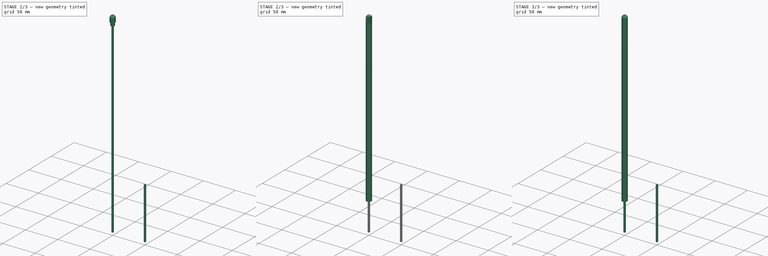
[diagram: build sequence overview — one tinted view per stage of 3, left to right]
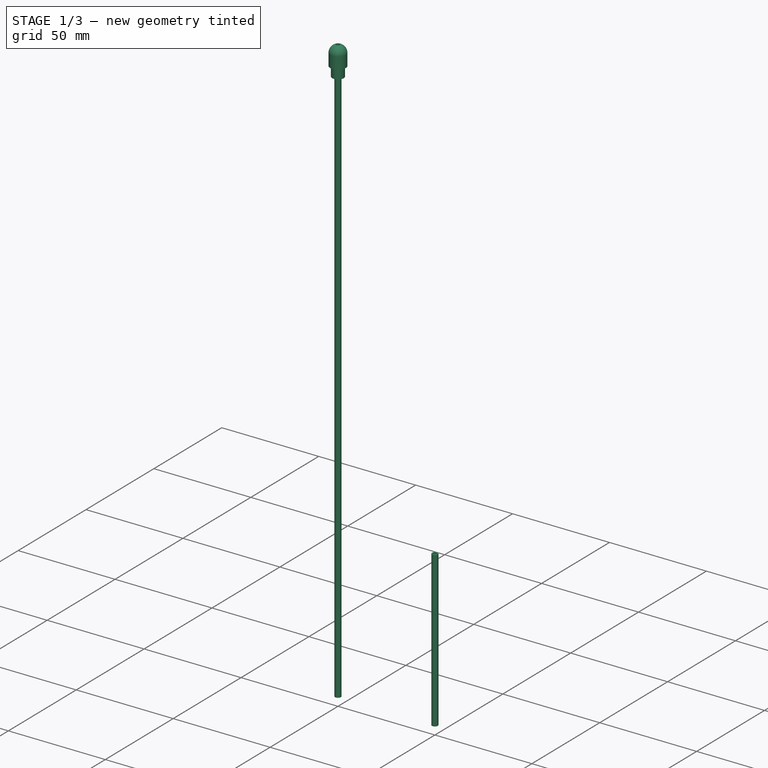
[diagram: stage 1 of 3 — iso view after this stage's code; geometry added in this stage tinted green]
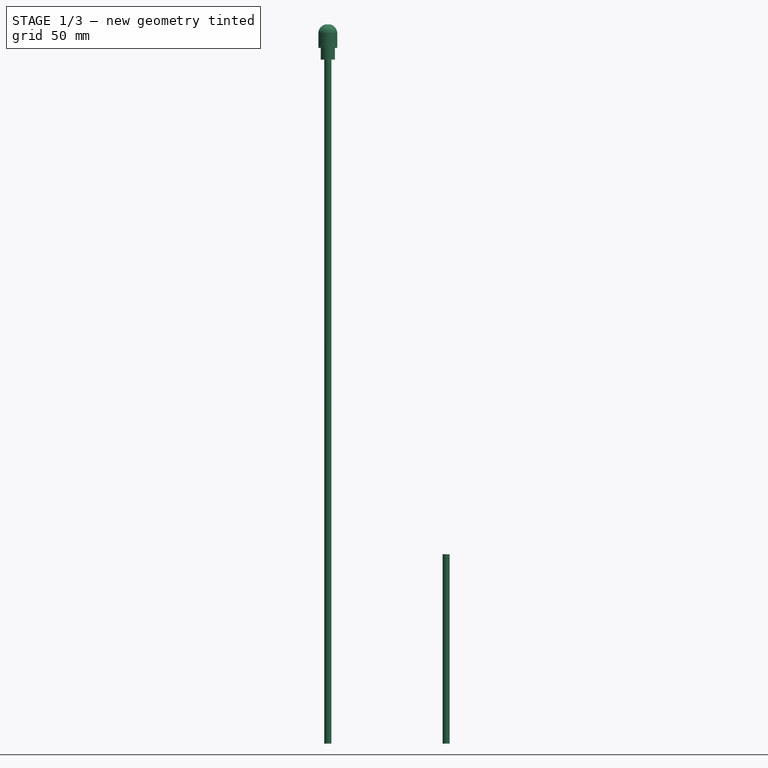
[diagram: stage 1 of 3 — front view after this stage's code; geometry added in this stage tinted green]
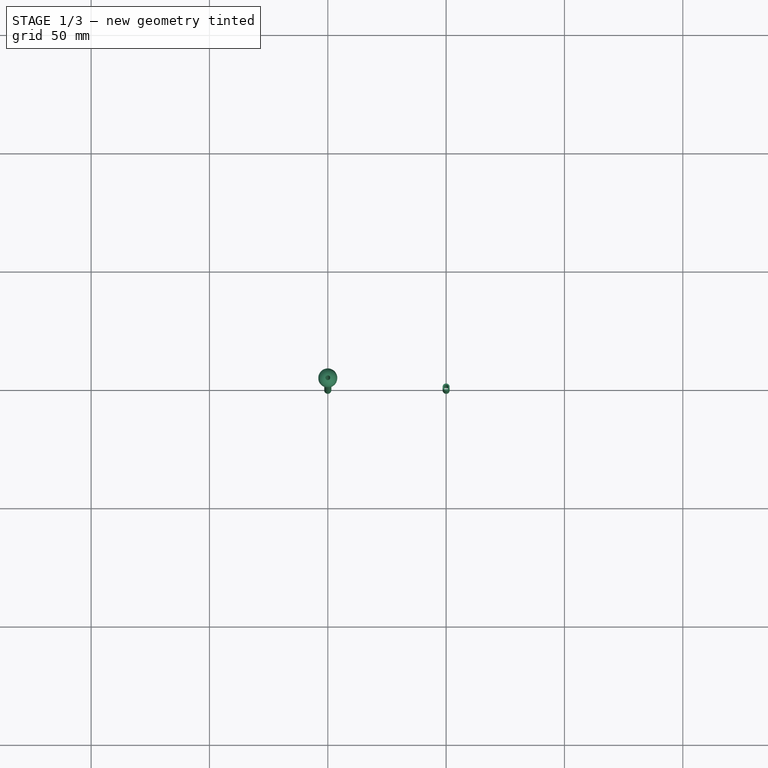
[diagram: stage 1 of 3 — top view after this stage's code; geometry added in this stage tinted green]
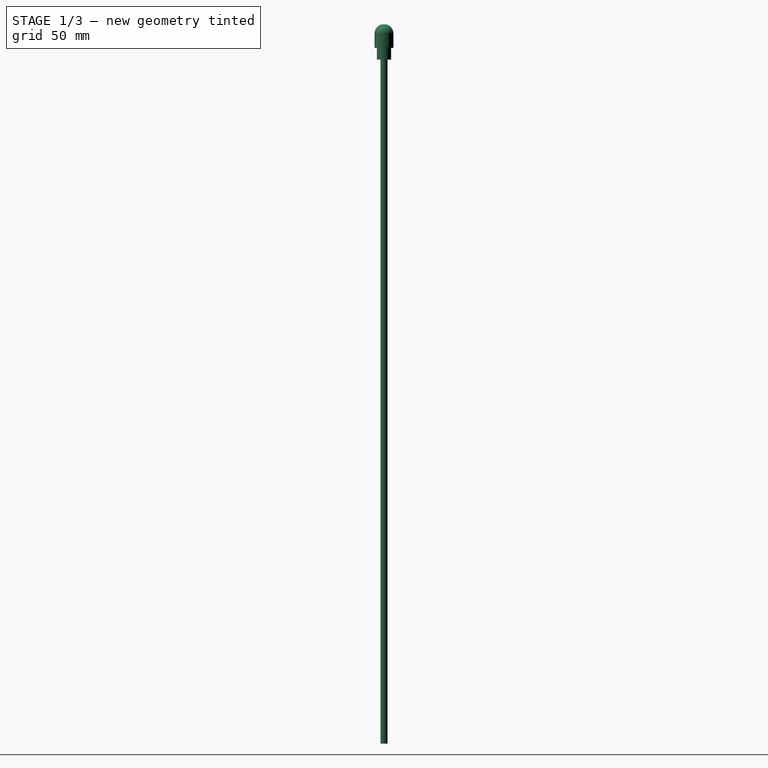
[diagram: stage 1 of 3 — right view after this stage's code; geometry added in this stage tinted green]
FCSTD DOCUMENT  (FreeCAD 0.16R6712 (Git))
Label: Assembly8mmBAD
License: All rights reserved
LicenseURL: http://en.wikipedia.org/wiki/All_rights_reserved
objects: Sketcher::SketchObject×7, PartDesign::Pad×4, PartDesign::Pocket×2, PartDesign::PolarPattern×1, PartDesign::Revolution×1
note: 22 computed .brp shape members not serialized (recipe doc carries the construction recipe); baked Part::Feature solids carry a one-line shape summary decoded from their .brp

FEATURE [Sketcher::SketchObject] Sketch004
  sketch-geometry (2):
    g0: Circle CenterX=0 CenterY=0 CenterZ=0 NormalX=0 NormalY=0 NormalZ=1 Radius=1.5
    g1: Circle CenterX=0 CenterY=0 CenterZ=0 NormalX=0 NormalY=0 NormalZ=1 Radius=1
  constraints (3):
    c: Coincident(g1,g-1)
    c: Radius(g1) = 1
    c: Radius(g0) = 1.5
FEATURE [PartDesign::Pad] Pad002
  Length = 293
  Length2 = 100
  Sketch = -> Sketch004
  Type = 0
FEATURE [Sketcher::SketchObject] Sketch005
  Placement = pos=(0,0,300) rot=(0,1,0;1.5708rad)
  sketch-geometry (8):
    g0: LineSegment StartX=1e-12 StartY=4 StartZ=0 EndX=6 EndY=4 EndZ=0
    g1: LineSegment StartX=6 StartY=4 StartZ=0 EndX=6 EndY=3 EndZ=0
    g2: LineSegment StartX=6 StartY=3 StartZ=0 EndX=11 EndY=3 EndZ=0
    g3: LineSegment StartX=11 StartY=3 StartZ=0 EndX=11 EndY=1.5 EndZ=0
    g4: LineSegment StartX=11 StartY=1.5 StartZ=0 EndX=8 EndY=1.5 EndZ=0
    g5: LineSegment StartX=8 StartY=1.5 StartZ=0 EndX=8 EndY=1 EndZ=0
    g6: ArcOfCircle CenterX=-0.0520403 CenterY=0.000338538 CenterZ=0 NormalX=0 NormalY=0 NormalZ=1 Radius=4 StartAngle=1.55779 EndAngle=2.889
    g7: LineSegment StartX=8 StartY=1 StartZ=0 EndX=-3.92511 EndY=1 EndZ=0
  constraints (22):
    c: Horizontal(g0)
    c: DistanceY(g-1,g0) = 4
    c: Coincident(g1,g0)
    c: Vertical(g1)
    c: Coincident(g2,g1)
    c: Horizontal(g2)
    c: Coincident(g3,g2)
    c: Vertical(g3)
    c: Coincident(g4,g3)
    c: Horizontal(g4)
    c: Coincident(g5,g4)
    c: Vertical(g5)
    c: DistanceY(g-1,g1) = 3
    c: DistanceX(g2,g2) = 5
    c: DistanceX(g4,g4) = 3
    c: DistanceY(g-1,g5) = 1
    c: DistanceY(g-1,g3) = 1.5
    c: Coincident(g6,g0)
    c: Radius(g6) = 4
    c: Coincident(g7,g5)
    c: Coincident(g7,g6)
    c: Horizontal(g7)
FEATURE [PartDesign::Revolution] Revolution
  Angle = 360
  Axis = (0,0,-1)
  Base = (0,0,300)
  Placement = pos=(0,0,300) rot=(0,1,0;1.5708rad)
  ReferenceAxis = -> Sketch005 [H_Axis]
  Sketch = -> Sketch005
FEATURE [Sketcher::SketchObject] Sketch006
  Placement = pos=(50,0,0) rot=(0,0,1;0rad)
  sketch-geometry (2):
    g0: Circle CenterX=0 CenterY=0 CenterZ=0 NormalX=0 NormalY=0 NormalZ=1 Radius=1.5
    g1: Circle CenterX=0 CenterY=0 CenterZ=0 NormalX=0 NormalY=0 NormalZ=1 Radius=1
  constraints (3):
    c: Coincident(g1,g-1)
    c: Radius(g1) = 1
    c: Radius(g0) = 1.5
FEATURE [PartDesign::Pad] Pad003
  Length = 80
  Length2 = 100
  Placement = pos=(50,0,0) rot=(0,0,1;0rad)
  Sketch = -> Sketch006
  Type = 0
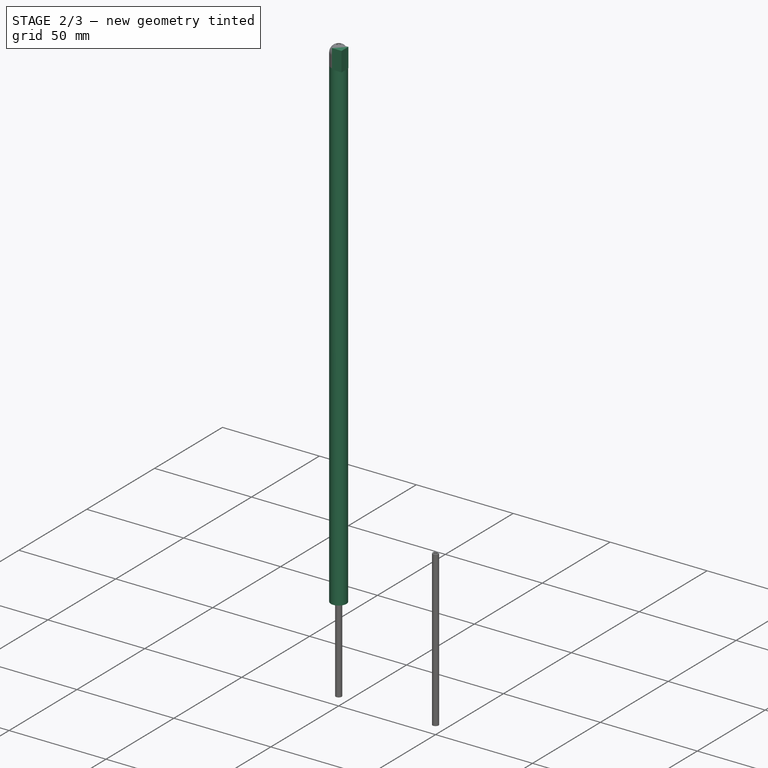
[diagram: stage 2 of 3 — iso view after this stage's code; geometry added in this stage tinted green]
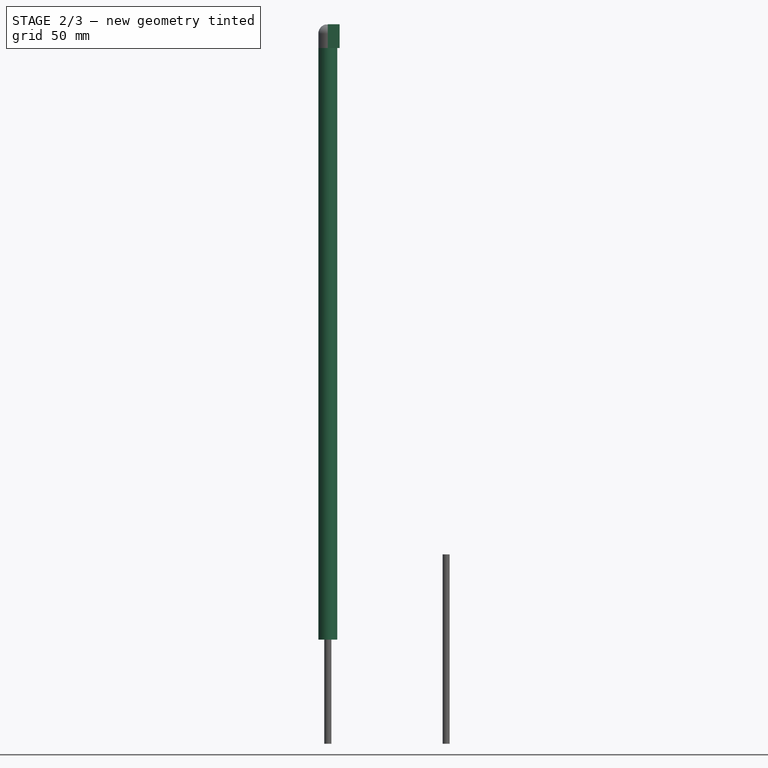
[diagram: stage 2 of 3 — front view after this stage's code; geometry added in this stage tinted green]
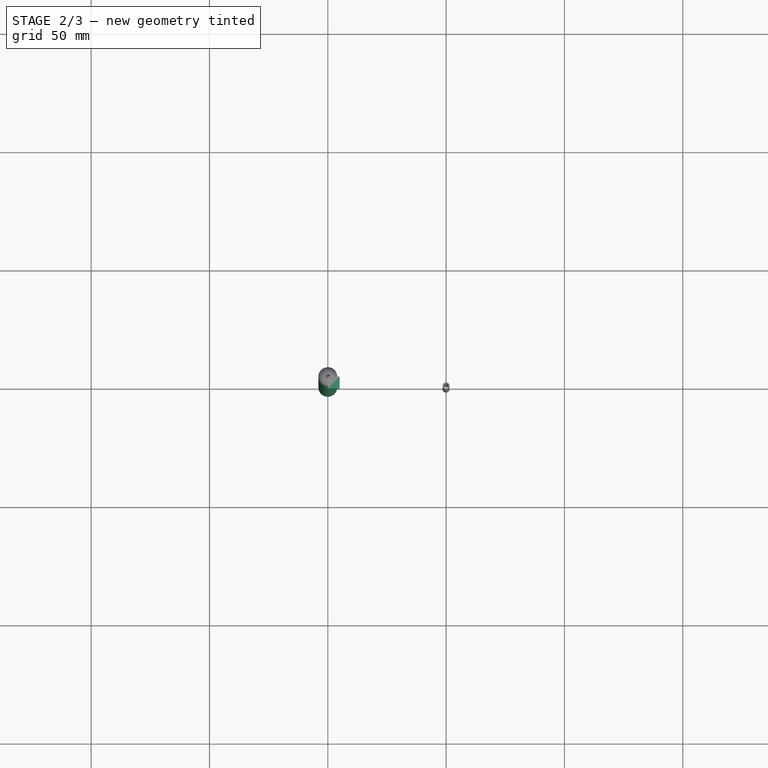
[diagram: stage 2 of 3 — top view after this stage's code; geometry added in this stage tinted green]
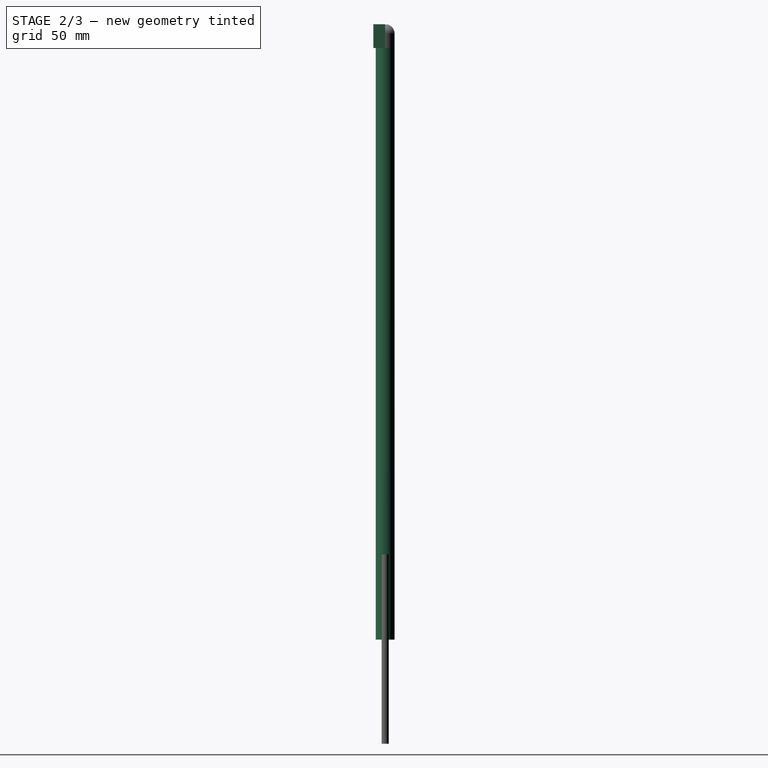
[diagram: stage 2 of 3 — right view after this stage's code; geometry added in this stage tinted green]
FEATURE [Sketcher::SketchObject] Sketch
  Placement = pos=(0,0,44) rot=(0,0,1;0rad)
  sketch-geometry (2):
    g0: Circle CenterX=0 CenterY=0 CenterZ=0 NormalX=0 NormalY=0 NormalZ=1 Radius=4
    g1: Circle CenterX=0 CenterY=0 CenterZ=0 NormalX=0 NormalY=0 NormalZ=1 Radius=3
  constraints (4):
    c: Coincident(g0,g-1)
    c: Coincident(g1,g-1)
    c: Radius(g1) = 3
    c: Radius(g0) = 4
FEATURE [PartDesign::Pad] Pad
  Length = 250
  Length2 = 100
  Placement = pos=(0,0,44) rot=(0,0,1;0rad)
  Sketch = -> Sketch
  Type = 0
FEATURE [Sketcher::SketchObject] Sketch001
  Placement = pos=(0,0,294) rot=(0,0,1;0rad)
  Support = -> Pad [Face4]
  sketch-geometry (4):
    g0: LineSegment StartX=0 StartY=0 StartZ=0 EndX=5 EndY=0 EndZ=0
    g1: LineSegment StartX=5 StartY=0 StartZ=0 EndX=5 EndY=-5 EndZ=0
    g2: LineSegment StartX=5 StartY=-5 StartZ=0 EndX=0 EndY=-5 EndZ=0
    g3: LineSegment StartX=0 StartY=-5 StartZ=0 EndX=0 EndY=0 EndZ=0
  constraints (11):
    c: Coincident(g0,g1)
    c: Coincident(g1,g2)
    c: Coincident(g2,g3)
    c: Coincident(g3,g0)
    c: Horizontal(g0)
    c: Horizontal(g2)
    c: Vertical(g1)
    c: Vertical(g3)
    c: Coincident(g0,g-1)
    c: DistanceX(g0,g0) = 5
    c: DistanceY(g1,g1) = 5
FEATURE [PartDesign::Pad] Pad001
  Length = 10
  Length2 = 100
  Placement = pos=(0,0,44) rot=(0,0,1;0rad)
  Sketch = -> Sketch001
  Type = 0
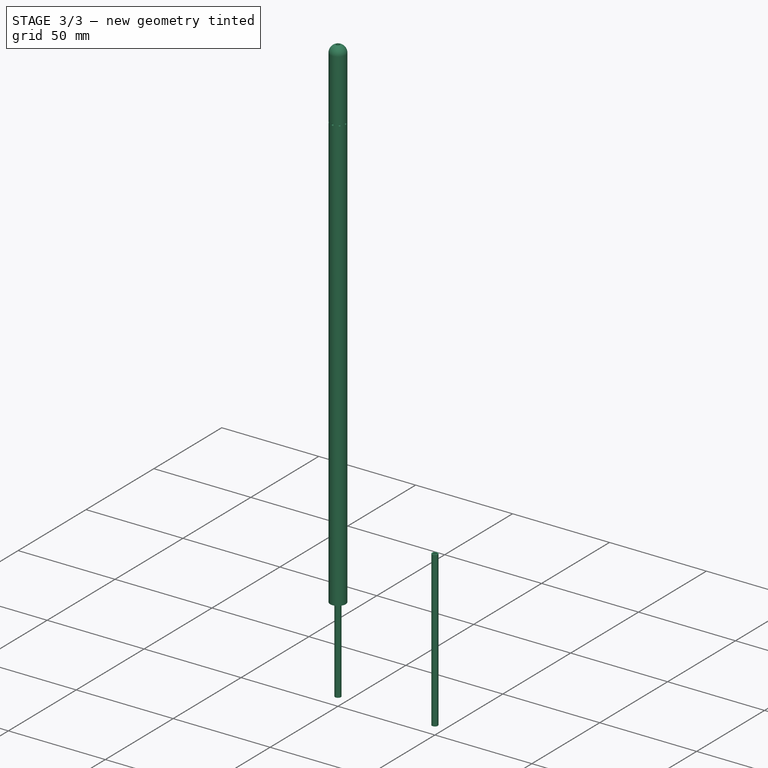
[diagram: stage 3 of 3 — iso view after this stage's code; geometry added in this stage tinted green]
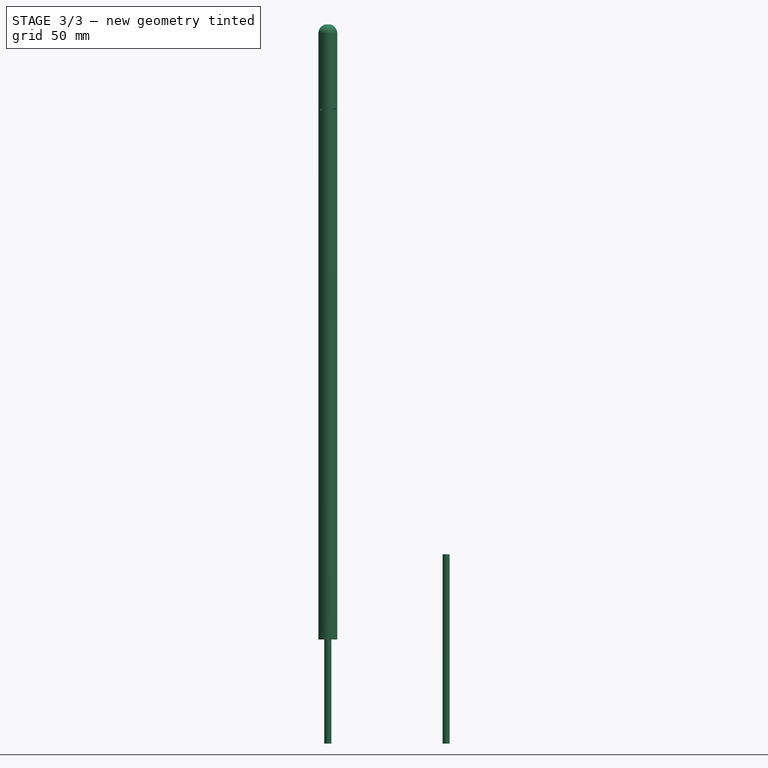
[diagram: stage 3 of 3 — front view after this stage's code; geometry added in this stage tinted green]
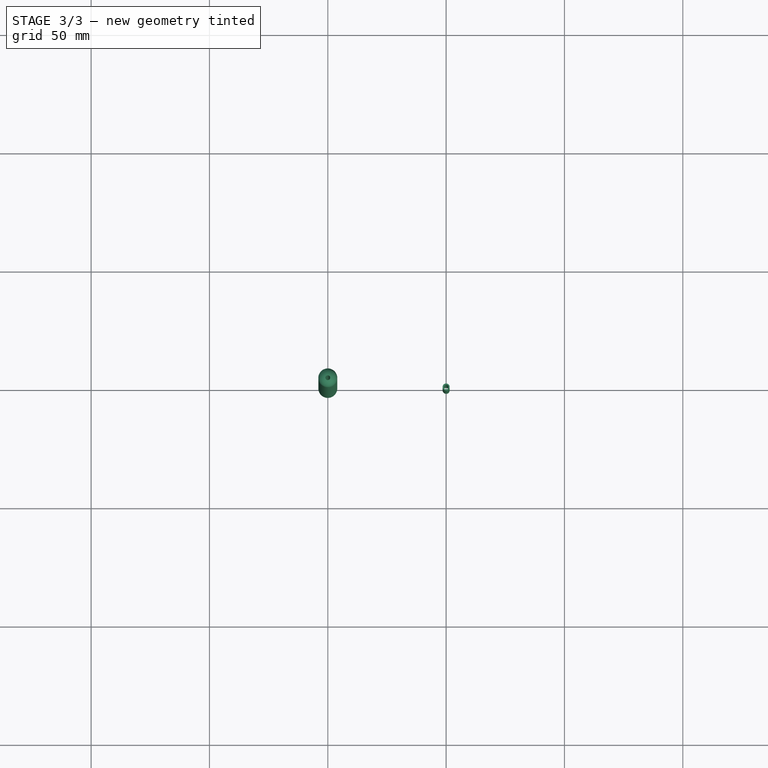
[diagram: stage 3 of 3 — top view after this stage's code; geometry added in this stage tinted green]
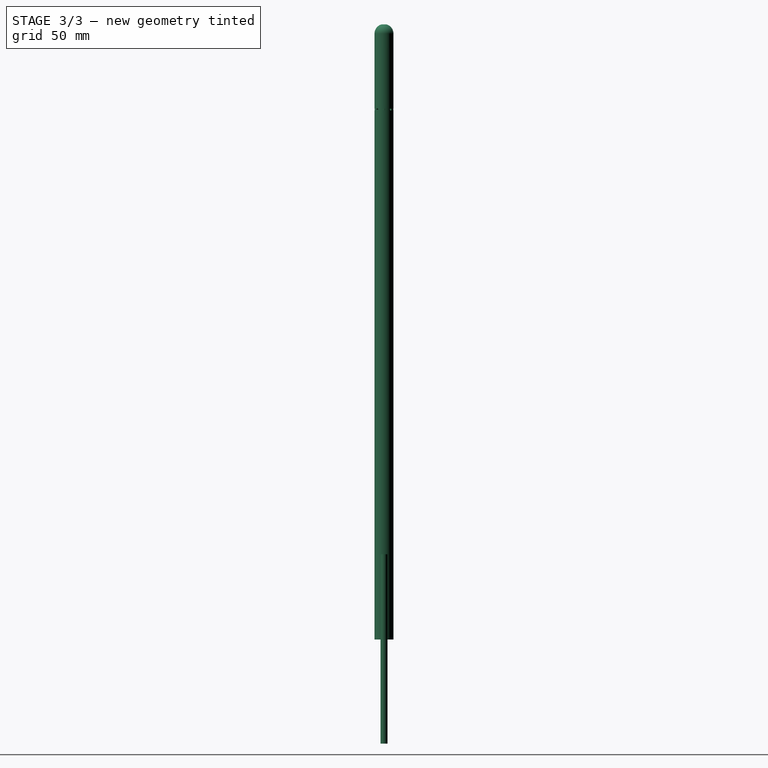
[diagram: stage 3 of 3 — right view after this stage's code; geometry added in this stage tinted green]
FEATURE [Sketcher::SketchObject] Sketch002
  Placement = pos=(0,-5,44) rot=(1,0,0;1.5708rad)
  Support = -> Pad001 [Face9]
  sketch-geometry (1):
    g0: Circle CenterX=0 CenterY=224 CenterZ=0 NormalX=0 NormalY=0 NormalZ=1 Radius=0.5
  constraints (3):
    c: DistanceX(g0) = 0
    c: DistanceY(g0) = 224
    c: Radius(g0) = 0.5
FEATURE [PartDesign::Pocket] Pocket
  Length = 3
  Placement = pos=(0,0,44) rot=(0,0,1;0rad)
  Sketch = -> Sketch002
  Type = 0
FEATURE [PartDesign::PolarPattern] PolarPattern
  Angle = 360
  Axis = -> Pocket [Edge22]
  Occurrences = 8
  Originals = -> [Pocket]
  Placement = pos=(0,0,44) rot=(0,0,1;0rad)
FEATURE [Sketcher::SketchObject] Sketch003
  Placement = pos=(0,0,304) rot=(0,0,1;0rad)
  Support = -> PolarPattern [Face19]
  sketch-geometry (4):
    g0: LineSegment StartX=-1.09302 StartY=0.881646 StartZ=0 EndX=7.33635 EndY=0.881646 EndZ=0
    g1: LineSegment StartX=7.33635 StartY=0.881646 StartZ=0 EndX=7.33635 EndY=-6.27383 EndZ=0
    g2: LineSegment StartX=7.33635 StartY=-6.27383 StartZ=0 EndX=-1.09302 EndY=-6.27383 EndZ=0
    g3: LineSegment StartX=-1.09302 StartY=-6.27383 StartZ=0 EndX=-1.09302 EndY=0.881646 EndZ=0
  constraints (8):
    c: Coincident(g0,g1)
    c: Coincident(g1,g2)
    c: Coincident(g2,g3)
    c: Coincident(g3,g0)
    c: Horizontal(g0)
    c: Horizontal(g2)
    c: Vertical(g1)
    c: Vertical(g3)
FEATURE [PartDesign::Pocket] Pocket001
  Length = 10
  Placement = pos=(0,0,44) rot=(0,0,1;0rad)
  Sketch = -> Sketch003
  Type = 0
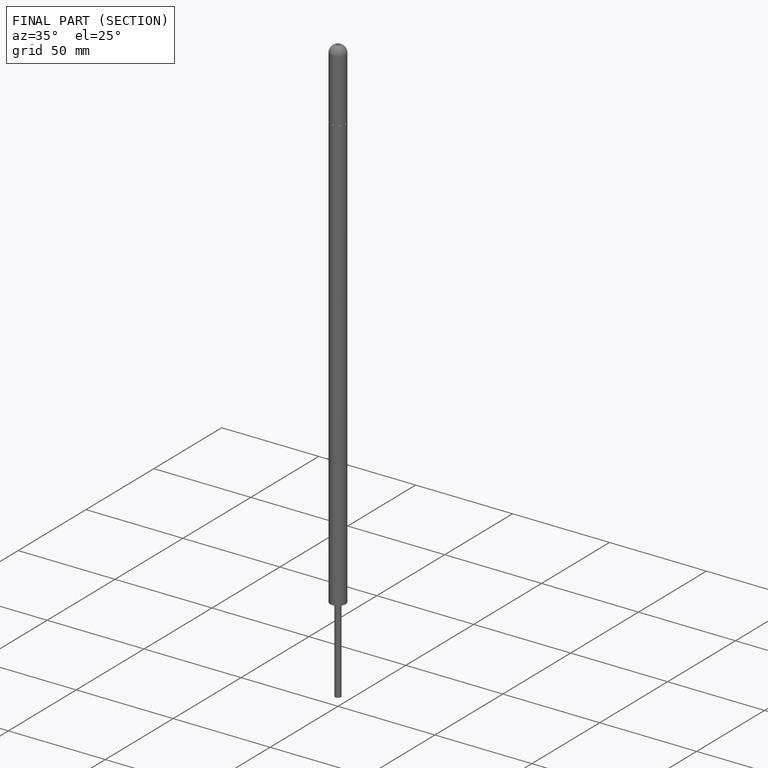
[diagram: finished part — half-section view (interior)]
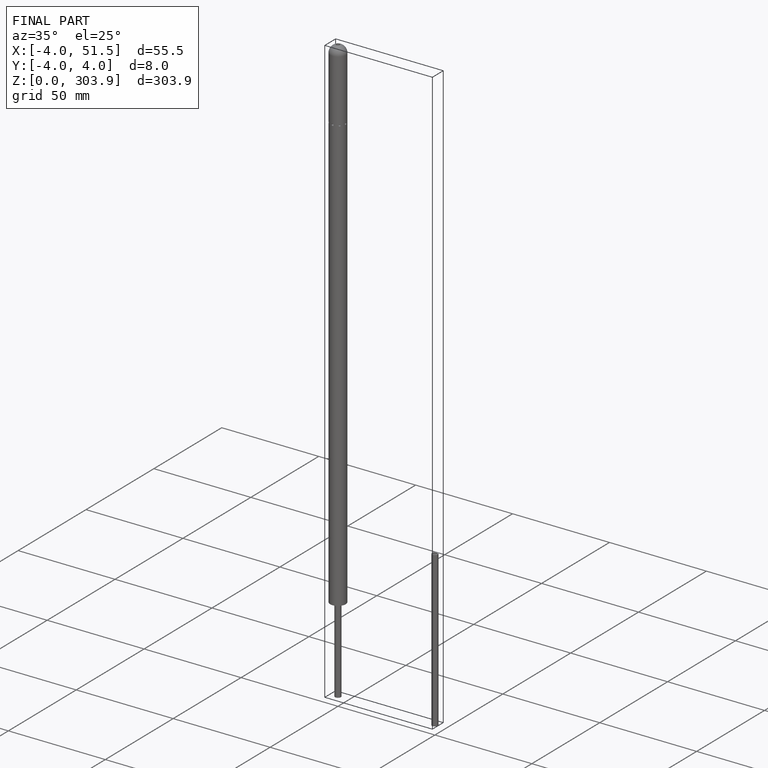
[diagram: finished part — iso view with bounding-box wireframe]
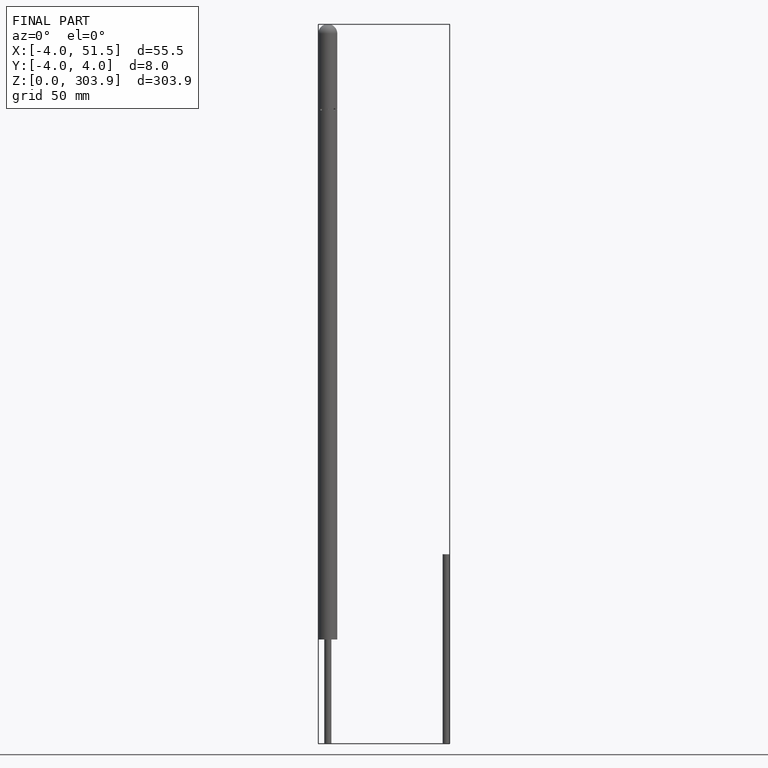
[diagram: finished part — front view with bounding-box wireframe]
